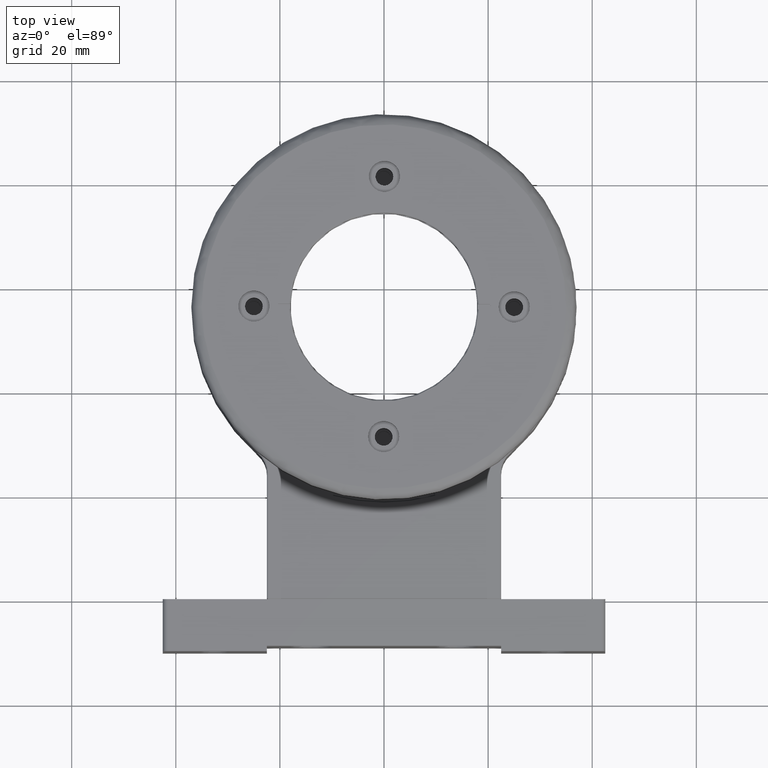
[diagram: clean part render]
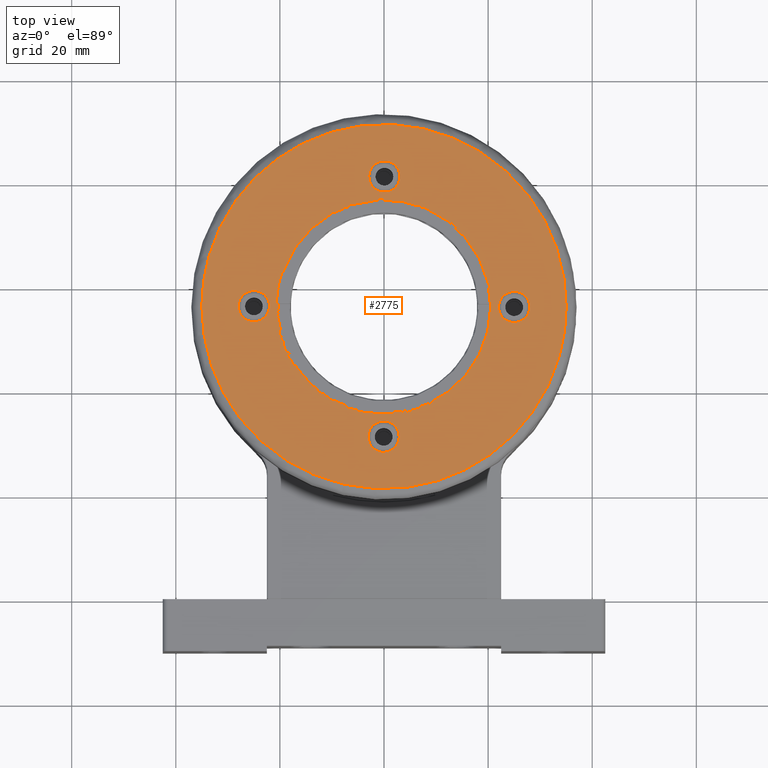
[diagram: same view with one face highlighted and labeled with its STEP entity id]
A machine part, top view. The second image highlights one B-rep face of the part: STEP entity #2775.
In plain terms, the highlighted planar face has unit normal (0, -0, 1).
Its self-contained STEP definition (entity closure, byte-faithful):
#58 = CARTESIAN_POINT ( 'NONE',  ( -6.542174846454915205, 21.61684761043369818, 39.99999999999995737 ) ) ;
#109 = EDGE_CURVE ( 'NONE', #12136, #12136, #9150, .T. ) ;
#190 = CARTESIAN_POINT ( 'NONE',  ( -13.22131955978605866, 23.59310915706839040, 39.99999999999997868 ) ) ;
#253 = CARTESIAN_POINT ( 'NONE',  ( 32.30874447367259705, 42.53950742878792823, 39.99999999999987921 ) ) ;
#282 = CARTESIAN_POINT ( 'NONE',  ( 6.505326938411154281, 90.39014109529070140, 39.99999999999995026 ) ) ;
#286 = VERTEX_POINT ( 'NONE', #3244 ) ;
#313 = CARTESIAN_POINT ( 'NONE',  ( 34.38315238956636222, 49.45782515354488140, 39.99999999999987210 ) ) ;
#327 = CIRCLE ( 'NONE', #5933, 2.999999999999996003 ) ;
#338 = CARTESIAN_POINT ( 'NONE',  ( -5.803856482215495660, 90.51590255441107047, 39.99999999999998579 ) ) ;
#376 = CARTESIAN_POINT ( 'NONE',  ( 34.36982392932547015, 49.38815533516250866, 39.99999999999988631 ) ) ;
#409 = CARTESIAN_POINT ( 'NONE',  ( -15.49648517400365932, 87.42174489368566981, 40.00000000000000711 ) ) ;
#413 = VERTEX_POINT ( 'NONE', #5595 ) ;
#443 = CARTESIAN_POINT ( 'NONE',  ( 28.03240252554591549, 35.02758553070528791, 39.99999999999989342 ) ) ;
#469 = CARTESIAN_POINT ( 'NONE',  ( 13.22131955978539430, 88.40689084293120459, 39.99999999999994316 ) ) ;
#500 = CARTESIAN_POINT ( 'NONE',  ( 25.53072454064341912, 32.02829720465393137, 39.99999999999988631 ) ) ;
#527 = CARTESIAN_POINT ( 'NONE',  ( 19.36660681679766327, 85.15373499218669906, 39.99999999999992895 ) ) ;
#566 = FACE_BOUND ( 'NONE', #10877, .T. ) ;
#591 = CARTESIAN_POINT ( 'NONE',  ( -29.88707231088368488, 74.25274414499034492, 40.00000000000003553 ) ) ;
#632 = FACE_BOUND ( 'NONE', #10486, .T. ) ;
#649 = CARTESIAN_POINT ( 'NONE',  ( -34.34967670223628744, 62.71630418763265880, 40.00000000000003553 ) ) ;
#704 = CARTESIAN_POINT ( 'NONE',  ( -34.99338474008010991, 58.24648396345419599, 40.00000000000003553 ) ) ;
#708 = EDGE_LOOP ( 'NONE', ( #8100 ) ) ;
#771 = CARTESIAN_POINT ( 'NONE',  ( -32.49043762676101466, 69.01432610799909639, 40.00000000000004263 ) ) ;
#884 = CARTESIAN_POINT ( 'NONE',  ( -34.99984086352086621, 56.10554396340680228, 40.00000000000003553 ) ) ;
#942 = CARTESIAN_POINT ( 'NONE',  ( -34.47598216360831458, 49.96554734788636409, 40.00000000000004263 ) ) ;
#1009 = CARTESIAN_POINT ( 'NONE',  ( -6.959726640633069117, 21.69841525138556193, 39.99999999999996447 ) ) ;
#1046 = CARTESIAN_POINT ( 'NONE',  ( 34.99984086352095858, 55.89445603659325457, 39.99999999999988631 ) ) ;
#1070 = CARTESIAN_POINT ( 'NONE',  ( -29.63144602568100083, 37.37160178156627666, 40.00000000000001421 ) ) ;
#1128 = CARTESIAN_POINT ( 'NONE',  ( -19.49215727222988903, 26.93004891466060258, 39.99999999999999289 ) ) ;
#1157 = DIRECTION ( 'NONE',  ( 0.9999954532434547350, -0.003015541811622172736, -2.030895776753335164E-15 ) ) ;
#1203 = CARTESIAN_POINT ( 'NONE',  ( 12.75072068833034855, 23.40520824597612304, 39.99999999999992184 ) ) ;
#1233 = CARTESIAN_POINT ( 'NONE',  ( 32.60715889120948674, 68.71905699232628706, 39.99999999999989342 ) ) ;
#1264 = CARTESIAN_POINT ( 'NONE',  ( 9.033958272793144673, 22.15242131505118905, 39.99999999999991473 ) ) ;
#1291 = CARTESIAN_POINT ( 'NONE',  ( -13.88598756662949718, 88.14932457190698756, 40.00000000000000711 ) ) ;
#1321 = CARTESIAN_POINT ( 'NONE',  ( 30.78298996030571288, 39.27054386853081525, 39.99999999999987921 ) ) ;
#1349 = CARTESIAN_POINT ( 'NONE',  ( 11.92742793723630790, 88.92454512357193153, 39.99999999999995026 ) ) ;
#1418 = CARTESIAN_POINT ( 'NONE',  ( 30.43355396240153254, 73.30399962658458435, 39.99999999999989342 ) ) ;
#1451 = CARTESIAN_POINT ( 'NONE',  ( 6.034434070147219664, 21.52401445596513341, 39.99999999999993605 ) ) ;
#1476 = CARTESIAN_POINT ( 'NONE',  ( 13.93656834835206126, 88.10811729676240134, 39.99999999999994316 ) ) ;
#1534 = CARTESIAN_POINT ( 'NONE',  ( -32.44848916849721121, 69.11857359999774530, 40.00000000000002132 ) ) ;
#1559 = ORIENTED_EDGE ( 'NONE', *, *, #5663, .T. ) ;
#1652 = CARTESIAN_POINT ( 'NONE',  ( -19.00059929646804591, 85.39358511063490198, 40.00000000000000711 ) ) ;
#1691 = FACE_BOUND ( 'NONE', #9148, .T. ) ;
#1773 = CARTESIAN_POINT ( 'NONE',  ( -33.47685140595361730, 66.32334029318401747, 40.00000000000003553 ) ) ;
#1829 = CARTESIAN_POINT ( 'NONE',  ( -31.42174489367296886, 40.50351482597691444, 40.00000000000001421 ) ) ;
#1946 = CARTESIAN_POINT ( 'NONE',  ( -8.411401220756401287, 22.01725617150984604, 39.99999999999996447 ) ) ;
#2013 = CARTESIAN_POINT ( 'NONE',  ( -34.59172831076352139, 50.65757873808058775, 40.00000000000002842 ) ) ;
#2074 = CARTESIAN_POINT ( 'NONE',  ( -32.67128193233013178, 43.44626054034133489, 40.00000000000002132 ) ) ;
#2134 = CARTESIAN_POINT ( 'NONE',  ( 32.40689084293126854, 42.77868044021327165, 39.99999999999988631 ) ) ;
#2207 = CARTESIAN_POINT ( 'NONE',  ( 4.417960699609261077, 21.27256774209317669, 39.99999999999993605 ) ) ;
#2235 = CARTESIAN_POINT ( 'NONE',  ( -12.55373945964619153, 88.67128193233450872, 39.99999999999999289 ) ) ;
#2269 = CARTESIAN_POINT ( 'NONE',  ( 34.39014058010912578, 49.49467032400624333, 39.99999999999988631 ) ) ;
#2270 = EDGE_CURVE ( 'NONE', #10195, #4555, #10026, .T. ) ;
#2295 = CARTESIAN_POINT ( 'NONE',  ( 32.63287008658848265, 68.65294749081573400, 39.99999999999989342 ) ) ;
#2326 = CARTESIAN_POINT ( 'NONE',  ( 26.74364260491284284, 33.36479455313599374, 39.99999999999988631 ) ) ;
#2358 = CARTESIAN_POINT ( 'NONE',  ( -6.133215838619096694, 90.45845010552297083, 39.99999999999999289 ) ) ;
#2362 = VERTEX_POINT ( 'NONE', #9001 ) ;
#2394 = CARTESIAN_POINT ( 'NONE',  ( 6.230002467478857220, 21.55891567341798876, 39.99999999999993605 ) ) ;
#2426 = CARTESIAN_POINT ( 'NONE',  ( 16.72945613145770949, 86.78298996030551393, 39.99999999999994316 ) ) ;
#2468 = FACE_BOUND ( 'NONE', #9093, .T. ) ;
#2485 = CARTESIAN_POINT ( 'NONE',  ( 6.959726640664433361, 90.30158474860337492, 39.99999999999995026 ) ) ;
#2612 = CARTESIAN_POINT ( 'NONE',  ( -24.99988633108631220, 56.07538854529057204, 40.00000000000001421 ) ) ;
#2660 = CARTESIAN_POINT ( 'NONE',  ( -34.36982392932463171, 62.61184466484154143, 40.00000000000002842 ) ) ;
#2716 = CARTESIAN_POINT ( 'NONE',  ( -34.39014058010901920, 62.50532967599378509, 40.00000000000002842 ) ) ;
#2732 = DIRECTION ( 'NONE',  ( -2.191762339234539386E-15, 4.880728349222902423E-16, -1.000000000000000000 ) ) ;
#2769 = CARTESIAN_POINT ( 'NONE',  ( -13.01432610800011958, 23.50956237323918430, 39.99999999999997868 ) ) ;
#2775 = ADVANCED_FACE ( 'NONE', ( #12163, #2468, #1691, #632, #566, #3463 ), #8275, .T. ) ;
#2840 = CARTESIAN_POINT ( 'NONE',  ( -35.00306838916777252, 55.03525173277359528, 40.00000000000003553 ) ) ;
#2896 = CARTESIAN_POINT ( 'NONE',  ( -16.72945613146382726, 25.21701003969084454, 39.99999999999998579 ) ) ;
#2915 = DIRECTION ( 'NONE',  ( -2.191762339234539386E-15, 4.880728349222902423E-16, -1.000000000000000000 ) ) ;
#2952 = CARTESIAN_POINT ( 'NONE',  ( -33.84757868495275801, 46.96604172723056081, 40.00000000000001421 ) ) ;
#3020 = CARTESIAN_POINT ( 'NONE',  ( -34.23160659622246982, 48.61851321509175250, 40.00000000000004263 ) ) ;
#3084 = CARTESIAN_POINT ( 'NONE',  ( 29.88707231090591421, 37.74725585504713621, 39.99999999999989342 ) ) ;
#3144 = CARTESIAN_POINT ( 'NONE',  ( 21.08999981972417714, 27.96339892373056912, 39.99999999999988631 ) ) ;
#3171 = CARTESIAN_POINT ( 'NONE',  ( -11.85713807587249491, 88.93257243358409880, 40.00000000000000000 ) ) ;
#3211 = CARTESIAN_POINT ( 'NONE',  ( 22.96053280713556433, 29.47363858884049392, 39.99999999999989342 ) ) ;
#3240 = CARTESIAN_POINT ( 'NONE',  ( -2.563618975986353021, 90.93487890580229305, 39.99999999999997868 ) ) ;
#3244 = CARTESIAN_POINT ( 'NONE',  ( 2.924597814439868326, 30.99106704347879315, 39.99999999999993605 ) ) ;
#3300 = CARTESIAN_POINT ( 'NONE',  ( 13.01432610799782630, 88.49043762676174651, 39.99999999999993605 ) ) ;
#3328 = CARTESIAN_POINT ( 'NONE',  ( 10.92261578922966159, 22.73928668200521130, 39.99999999999991473 ) ) ;
#3361 = CARTESIAN_POINT ( 'NONE',  ( 31.42174489363064893, 71.49648517410402349, 39.99999999999989342 ) ) ;
#3425 = CARTESIAN_POINT ( 'NONE',  ( 19.30233473393600008, 85.19632267863711661, 39.99999999999992895 ) ) ;
#3463 = FACE_OUTER_BOUND ( 'NONE', #5612, .T. ) ;
#3533 = CARTESIAN_POINT ( 'NONE',  ( -34.20107381302227623, 63.44530581268689673, 40.00000000000003553 ) ) ;
#3574 = EDGE_CURVE ( 'NONE', #286, #286, #327, .T. ) ;
#3626 = CARTESIAN_POINT ( 'NONE',  ( 34.23160659622759283, 63.38148678491044308, 39.99999999999987210 ) ) ;
#3694 = DIRECTION ( 'NONE',  ( 0.9999954532434546239, -0.003015541811623079563, -2.312964634635745817E-15 ) ) ;
#3716 = CARTESIAN_POINT ( 'NONE',  ( -32.92454512359244490, 67.92742793719537531, 40.00000000000004263 ) ) ;
#3748 = CARTESIAN_POINT ( 'NONE',  ( 34.51589601165291299, 61.80389244730496046, 39.99999999999988631 ) ) ;
#3768 = CARTESIAN_POINT ( 'NONE',  ( -10.32334029312213453, 22.52314859403500336, 39.99999999999997868 ) ) ;
#3795 = CARTESIAN_POINT ( 'NONE',  ( 24.99988633108641878, 55.92461145470947770, 39.99999999999990052 ) ) ;
#3825 = DIRECTION ( 'NONE',  ( -2.191762339234539386E-15, 4.880728349222902423E-16, -1.000000000000000000 ) ) ;
#3834 = ORIENTED_EDGE ( 'NONE', *, *, #7884, .T. ) ;
#3835 = CARTESIAN_POINT ( 'NONE',  ( -19.68002070505681544, 27.05628866400957477, 39.99999999999998579 ) ) ;
#3883 = B_SPLINE_CURVE_WITH_KNOTS ( 'NONE', 3,
 ( #8504, #4920, #6919, #12335, #10736, #3748, #7571, #5990, #8382, #12215, #3626, #7448, #11259, #6502, #10324, #4113, #2295, #1233, #6053, #5116, #3361, #1418, #10869, #7175, #5057, #7107, #4174, #6112, #4301, #6175, #5176, #9114, #10996, #11816, #5244, #527, #3425, #11936, #2426, #9994, #1476, #6241, #469, #9932, #8873, #3300, #1349, #10931, #9058, #7992, #2485, #8112, #10060, #11879, #282, #4360, #11748, #5303, #3240, #8929, #8175, #338, #7928, #2358, #12008, #7239, #11056, #9869, #6297, #3171, #8994, #2235, #6982, #7048, #10807, #1291, #409, #4241, #8056, #8292, #9239, #7297, #1652, #7481, #11109, #8419, #5537, #9290, #6356, #11293, #10241, #8478, #8352, #591, #9353, #7354, #10117, #10178, #12307, #1534, #4540, #771, #3716, #1773, #12122, #3533, #4430, #649, #2660, #4483, #2716, #5363, #704, #11169 ),
 .UNSPECIFIED., .F., .F.,
 ( 4, 1, 1, 1, 1, 1, 2, 2, 1, 1, 1, 1, 1, 2, 2, 1, 1, 1, 1, 2, 2, 2, 1, 1, 1, 1, 2, 2, 1, 1, 1, 1, 1, 2, 2, 1, 1, 1, 1, 1, 2, 2, 2, 1, 1, 1, 1, 1, 2, 2, 1, 1, 1, 1, 1, 2, 2, 1, 1, 1, 1, 2, 2, 2, 1, 1, 1, 1, 2, 2, 1, 1, 1, 1, 1, 2, 2, 1, 1, 1, 1, 1, 2, 2, 4 ),
 ( 0.000000000000000000, 0.03125000000000903444, 0.04687500000001345452, 0.05468750000001555006, 0.05859375000001658396, 0.06054687500001711825, 0.06152343750001727785, 0.06250000000001744438, 0.09375000000002380041, 0.1093750000000269784, 0.1171875000000287825, 0.1210937500000299066, 0.1230468750000304201, 0.1240234375000306838, 0.1250000000000309197, 0.1562500000000317246, 0.1718750000000321410, 0.1796875000000325018, 0.1835937500000325018, 0.1855468750000325295, 0.1875000000000325295, 0.2500000000000299760, 0.2812500000000288658, 0.2968750000000281997, 0.3046875000000278111, 0.3085937500000275890, 0.3105468750000274225, 0.3125000000000272560, 0.3437500000000242029, 0.3593750000000226485, 0.3671875000000219269, 0.3710937500000215383, 0.3730468750000212608, 0.3740234375000211497, 0.3750000000000210387, 0.4062500000000209277, 0.4218750000000209277, 0.4296875000000209277, 0.4335937500000209277, 0.4355468750000209277, 0.4365234375000208722, 0.4375000000000208167, 0.5000000000000178746, 0.5312500000000163203, 0.5468750000000156541, 0.5546875000000152101, 0.5585937500000150990, 0.5605468750000149880, 0.5615234375000148770, 0.5625000000000148770, 0.5937500000000129896, 0.6093750000000121014, 0.6171875000000116573, 0.6210937500000114353, 0.6230468750000113243, 0.6240234375000113243, 0.6250000000000112133, 0.6562500000000093259, 0.6718750000000084377, 0.6796875000000078826, 0.6835937500000075495, 0.6855468750000073275, 0.6875000000000071054, 0.7500000000000024425, 0.7812500000000001110, 0.7968749999999990008, 0.8046874999999985567, 0.8085937499999984457, 0.8105468749999981126, 0.8124999999999977796, 0.8437499999999937828, 0.8593749999999918954, 0.8671874999999908962, 0.8710937499999904521, 0.8730468749999901190, 0.8740234374999900080, 0.8749999999999897859, 0.9062499999999917843, 0.9218749999999930056, 0.9296874999999933387, 0.9335937499999935607, 0.9355468749999936717, 0.9365234374999937828, 0.9374999999999937828, 1.000000000000000000 ),
 .UNSPECIFIED. ) ;
#3893 = CARTESIAN_POINT ( 'NONE',  ( -34.51589601165283483, 50.19610755268375613, 40.00000000000003553 ) ) ;
#3953 = CARTESIAN_POINT ( 'NONE',  ( -28.03660107628403964, 34.91000018029846075, 40.00000000000000711 ) ) ;
#4025 = CARTESIAN_POINT ( 'NONE',  ( -29.90462150348628256, 37.81009300292045339, 40.00000000000001421 ) ) ;
#4086 = CARTESIAN_POINT ( 'NONE',  ( 6.199062084762354985, 21.55333533089448395, 39.99999999999992895 ) ) ;
#4113 = CARTESIAN_POINT ( 'NONE',  ( 32.67128193233130418, 68.55373945965915539, 39.99999999999990763 ) ) ;
#4146 = CARTESIAN_POINT ( 'NONE',  ( 6.133215838620476923, 21.54154989447624757, 39.99999999999993605 ) ) ;
#4174 = CARTESIAN_POINT ( 'NONE',  ( 29.39358511063647228, 75.00059929646634771, 39.99999999999989342 ) ) ;
#4214 = CARTESIAN_POINT ( 'NONE',  ( 34.99984086352095858, 55.89445603659325457, 39.99999999999988631 ) ) ;
#4241 = CARTESIAN_POINT ( 'NONE',  ( -17.30399962650928458, 86.43355396244277244, 40.00000000000000711 ) ) ;
#4274 = CARTESIAN_POINT ( 'NONE',  ( 28.64520469727548857, 35.88486703724166205, 39.99999999999988631 ) ) ;
#4275 = CARTESIAN_POINT ( 'NONE',  ( -34.99984086352086621, 56.10554396340680228, 40.00000000000003553 ) ) ;
#4301 = CARTESIAN_POINT ( 'NONE',  ( 26.52636141118571800, 78.96053280710926003, 39.99999999999990763 ) ) ;
#4360 = CARTESIAN_POINT ( 'NONE',  ( 4.368964455372240430, 90.79218025164516348, 39.99999999999995737 ) ) ;
#4430 = CARTESIAN_POINT ( 'NONE',  ( -34.30158474861174511, 62.95972664064763791, 40.00000000000002842 ) ) ;
#4483 = CARTESIAN_POINT ( 'NONE',  ( -34.38315238956585773, 62.54217484645718628, 40.00000000000003553 ) ) ;
#4540 = CARTESIAN_POINT ( 'NONE',  ( -32.47611818463031597, 69.05002223999726141, 40.00000000000004263 ) ) ;
#4555 = VERTEX_POINT ( 'NONE', #1046 ) ;
#4664 = DIRECTION ( 'NONE',  ( -2.191762339234539386E-15, 4.880728349222902423E-16, -1.000000000000000000 ) ) ;
#4712 = CARTESIAN_POINT ( 'NONE',  ( -32.75982494111590881, 43.67805239860855693, 40.00000000000002132 ) ) ;
#4844 = CIRCLE ( 'NONE', #7040, 2.999999999999996003 ) ;
#4895 = CARTESIAN_POINT ( 'NONE',  ( -30.43355396243327249, 38.69600037347613153, 40.00000000000002132 ) ) ;
#4920 = CARTESIAN_POINT ( 'NONE',  ( 35.00306838916778673, 56.96474826719884987, 39.99999999999988631 ) ) ;
#4962 = CARTESIAN_POINT ( 'NONE',  ( -34.45844815048441490, 49.86677341466626245, 40.00000000000002842 ) ) ;
#5032 = CARTESIAN_POINT ( 'NONE',  ( 18.93979999829061711, 26.56720448755326558, 39.99999999999990763 ) ) ;
#5057 = CARTESIAN_POINT ( 'NONE',  ( 29.51250455340190726, 74.81536678532729923, 39.99999999999988631 ) ) ;
#5089 = CARTESIAN_POINT ( 'NONE',  ( 34.30158474861437412, 49.04027335936577003, 39.99999999999988631 ) ) ;
#5116 = CARTESIAN_POINT ( 'NONE',  ( 32.14932457187553183, 69.88598756668689305, 39.99999999999989342 ) ) ;
#5148 = CARTESIAN_POINT ( 'NONE',  ( 34.79221322326682753, 51.63121074991892812, 39.99999999999988631 ) ) ;
#5176 = CARTESIAN_POINT ( 'NONE',  ( 22.63520544684118363, 82.74364260493582890, 39.99999999999991473 ) ) ;
#5216 = CARTESIAN_POINT ( 'NONE',  ( 12.32194760139704925, 23.24017505888498647, 39.99999999999990052 ) ) ;
#5244 = CARTESIAN_POINT ( 'NONE',  ( 19.49215727222414429, 85.06995108534435701, 39.99999999999991473 ) ) ;
#5275 = CARTESIAN_POINT ( 'NONE',  ( 19.00059929646745260, 26.60641488936466814, 39.99999999999990763 ) ) ;
#5303 = CARTESIAN_POINT ( 'NONE',  ( -0.9646605808856675290, 91.00308434103526167, 39.99999999999998579 ) ) ;
#5363 = CARTESIAN_POINT ( 'NONE',  ( -34.79221322326672805, 60.36878925008104346, 40.00000000000002842 ) ) ;
#5376 = DIRECTION ( 'NONE',  ( 0.9999954532434548460, -0.003015541811620767610, -2.312964634635746605E-15 ) ) ;
#5463 = DIRECTION ( 'NONE',  ( 2.191762339234539386E-15, -4.880728349222902423E-16, 1.000000000000000000 ) ) ;
#5537 = CARTESIAN_POINT ( 'NONE',  ( -26.74364260488679435, 78.63520544689662017, 40.00000000000004263 ) ) ;
#5595 = CARTESIAN_POINT ( 'NONE',  ( 20.49990679149087569, 55.93818139286176461, 39.99999999999991473 ) ) ;
#5612 = EDGE_LOOP ( 'NONE', ( #7330, #6493 ) ) ;
#5655 = CARTESIAN_POINT ( 'NONE',  ( -34.44108432658190821, 49.76999753252079728, 40.00000000000004263 ) ) ;
#5663 = EDGE_CURVE ( 'NONE', #2362, #2362, #7737, .T. ) ;
#5712 = CARTESIAN_POINT ( 'NONE',  ( -23.97170279535725967, 30.46927545936402382, 40.00000000000000711 ) ) ;
#5751 = AXIS2_PLACEMENT_3D ( 'NONE', #2612, #2732, #5376 ) ;
#5770 = CARTESIAN_POINT ( 'NONE',  ( -22.63520544688360658, 29.25635739510013877, 39.99999999999998579 ) ) ;
#5817 = EDGE_CURVE ( 'NONE', #413, #413, #9533, .T. ) ;
#5840 = CARTESIAN_POINT ( 'NONE',  ( -29.51250455340764844, 37.18463321468384208, 40.00000000000002132 ) ) ;
#5918 = CARTESIAN_POINT ( 'NONE',  ( 5.351378694325055535E-14, 56.00000000000002132, 39.99999999999995737 ) ) ;
#5933 = AXIS2_PLACEMENT_3D ( 'NONE', #8289, #4664, #7477 ) ;
#5961 = CARTESIAN_POINT ( 'NONE',  ( 2.563618976004601535, 21.06512109418545364, 39.99999999999993605 ) ) ;
#5990 = CARTESIAN_POINT ( 'NONE',  ( 34.45844815048451437, 62.13322658533039089, 39.99999999999987921 ) ) ;
#6028 = CARTESIAN_POINT ( 'NONE',  ( 33.98274382848978092, 47.58859877923993054, 39.99999999999987921 ) ) ;
#6053 = CARTESIAN_POINT ( 'NONE',  ( 32.59479175402447737, 68.75072068832923833, 39.99999999999990052 ) ) ;
#6084 = CARTESIAN_POINT ( 'NONE',  ( 15.49648517404455639, 24.57825510634090449, 39.99999999999992184 ) ) ;
#6112 = CARTESIAN_POINT ( 'NONE',  ( 28.03660107623556996, 77.08999981975829030, 39.99999999999992184 ) ) ;
#6175 = CARTESIAN_POINT ( 'NONE',  ( 23.97170279533307280, 81.53072454065659258, 39.99999999999993605 ) ) ;
#6206 = AXIS2_PLACEMENT_3D ( 'NONE', #9097, #5463, #7281 ) ;
#6213 = CARTESIAN_POINT ( 'NONE',  ( 7.381486784921821531, 21.76839340377978260, 39.99999999999992184 ) ) ;
#6241 = CARTESIAN_POINT ( 'NONE',  ( 13.46049257120940545, 88.30874447367253310, 39.99999999999994316 ) ) ;
#6297 = CARTESIAN_POINT ( 'NONE',  ( -10.92261578913473663, 89.26071331802451425, 40.00000000000001421 ) ) ;
#6356 = CARTESIAN_POINT ( 'NONE',  ( -28.64520469726402752, 76.11513296277264828, 40.00000000000002132 ) ) ;
#6493 = ORIENTED_EDGE ( 'NONE', *, *, #2270, .T. ) ;
#6502 = CARTESIAN_POINT ( 'NONE',  ( 32.93257243357241748, 67.85713807591920954, 39.99999999999989342 ) ) ;
#6586 = CARTESIAN_POINT ( 'NONE',  ( -26.52636141113703161, 33.03946719284972033, 40.00000000000000711 ) ) ;
#6651 = CARTESIAN_POINT ( 'NONE',  ( -32.93257243356848818, 44.14286192408250997, 40.00000000000002842 ) ) ;
#6706 = CARTESIAN_POINT ( 'NONE',  ( -13.93656834835468850, 23.89188270323602836, 39.99999999999997158 ) ) ;
#6766 = CARTESIAN_POINT ( 'NONE',  ( -19.36660681680054097, 26.84626500781585534, 39.99999999999998579 ) ) ;
#6834 = CARTESIAN_POINT ( 'NONE',  ( -32.63287008658777211, 43.34705250918459285, 40.00000000000002842 ) ) ;
#6896 = CARTESIAN_POINT ( 'NONE',  ( 31.68952518937148000, 41.12036108017552039, 39.99999999999988631 ) ) ;
#6919 = CARTESIAN_POINT ( 'NONE',  ( 34.93485099003417815, 58.56377242703438668, 39.99999999999989342 ) ) ;
#6956 = CARTESIAN_POINT ( 'NONE',  ( 29.15373499218511455, 36.63339318320082327, 39.99999999999990052 ) ) ;
#6982 = CARTESIAN_POINT ( 'NONE',  ( -12.65294749080817560, 88.63287008659035848, 40.00000000000000000 ) ) ;
#7021 = CARTESIAN_POINT ( 'NONE',  ( 29.19632267863714858, 36.69766526606450441, 39.99999999999989342 ) ) ;
#7040 = AXIS2_PLACEMENT_3D ( 'NONE', #7767, #3825, #3694 ) ;
#7048 = CARTESIAN_POINT ( 'NONE',  ( -12.71905699232242171, 88.60715889121040334, 39.99999999999999289 ) ) ;
#7107 = CARTESIAN_POINT ( 'NONE',  ( 29.43279551244480530, 74.93979999829477379, 39.99999999999990052 ) ) ;
#7140 = CARTESIAN_POINT ( 'NONE',  ( 11.85713807592793323, 23.06742756643324910, 39.99999999999990763 ) ) ;
#7175 = CARTESIAN_POINT ( 'NONE',  ( 29.63144602567114205, 74.62839821845273036, 39.99999999999989342 ) ) ;
#7239 = CARTESIAN_POINT ( 'NONE',  ( -6.230002467481003947, 90.44108432658136110, 39.99999999999998579 ) ) ;
#7281 = DIRECTION ( 'NONE',  ( 0.9999954532434546239, -0.003015541811622030489, -2.193224177865602524E-15 ) ) ;
#7297 = CARTESIAN_POINT ( 'NONE',  ( -18.93979999828763638, 85.43279551244862091, 40.00000000000001421 ) ) ;
#7330 = ORIENTED_EDGE ( 'NONE', *, *, #11801, .T. ) ;
#7354 = CARTESIAN_POINT ( 'NONE',  ( -31.68952518934230866, 70.87963891987374154, 40.00000000000004974 ) ) ;
#7369 = VERTEX_POINT ( 'NONE', #9306 ) ;
#7448 = CARTESIAN_POINT ( 'NONE',  ( 33.84757868496168953, 65.03395827277324770, 39.99999999999988631 ) ) ;
#7477 = DIRECTION ( 'NONE',  ( 0.9999954532434546239, -0.003015541811621922936, -2.312964634635745817E-15 ) ) ;
#7481 = CARTESIAN_POINT ( 'NONE',  ( -21.08999981970150017, 84.03660107628411424, 40.00000000000001421 ) ) ;
#7571 = CARTESIAN_POINT ( 'NONE',  ( 34.47598216360842827, 62.03445265210783788, 39.99999999999988631 ) ) ;
#7593 = CARTESIAN_POINT ( 'NONE',  ( -29.43279551244769010, 37.06020000171097450, 40.00000000000000711 ) ) ;
#7656 = CARTESIAN_POINT ( 'NONE',  ( -18.25274414494977293, 26.11292768909215667, 39.99999999999999289 ) ) ;
#7713 = CARTESIAN_POINT ( 'NONE',  ( -6.505326938411899462, 21.60985890470914228, 39.99999999999996447 ) ) ;
#7737 = CIRCLE ( 'NONE', #8734, 2.999999999999995115 ) ;
#7767 = CARTESIAN_POINT ( 'NONE',  ( 0.07538854529060777521, 80.99988633108638680, 39.99999999999997158 ) ) ;
#7777 = CARTESIAN_POINT ( 'NONE',  ( -20.97241446930941322, 27.96759747446384736, 40.00000000000000711 ) ) ;
#7847 = CARTESIAN_POINT ( 'NONE',  ( 29.06995108534124128, 36.50784272777278971, 39.99999999999989342 ) ) ;
#7884 = EDGE_CURVE ( 'NONE', #7369, #7369, #4844, .T. ) ;
#7905 = CARTESIAN_POINT ( 'NONE',  ( 32.49043762676090097, 42.98567389199993727, 39.99999999999988631 ) ) ;
#7928 = CARTESIAN_POINT ( 'NONE',  ( -6.034434070144910400, 90.47598554403343485, 39.99999999999998579 ) ) ;
#7964 = CARTESIAN_POINT ( 'NONE',  ( 5.342354127072791670, 21.40825947608255930, 39.99999999999992895 ) ) ;
#7992 = CARTESIAN_POINT ( 'NONE',  ( 7.445305812718274296, 90.20107381300657323, 39.99999999999996447 ) ) ;
#8030 = CARTESIAN_POINT ( 'NONE',  ( 13.88598756665291667, 23.85067542810822872, 39.99999999999990763 ) ) ;
#8056 = CARTESIAN_POINT ( 'NONE',  ( -18.18990699707103076, 85.90462150349183901, 40.00000000000000000 ) ) ;
#8087 = CARTESIAN_POINT ( 'NONE',  ( 0.9646605808961420392, 20.99691565895773948, 39.99999999999994316 ) ) ;
#8100 = ORIENTED_EDGE ( 'NONE', *, *, #3574, .T. ) ;
#8112 = CARTESIAN_POINT ( 'NONE',  ( 6.716304187641352286, 90.34967670223201708, 39.99999999999996447 ) ) ;
#8175 = CARTESIAN_POINT ( 'NONE',  ( -5.342354127064751879, 90.59174052391207965, 39.99999999999998579 ) ) ;
#8275 = PLANE ( 'NONE',  #6206 ) ;
#8289 = CARTESIAN_POINT ( 'NONE',  ( -0.07538854529049220099, 31.00011366891365938, 39.99999999999994316 ) ) ;
#8292 = CARTESIAN_POINT ( 'NONE',  ( -18.62839821842914745, 85.63144602568404196, 40.00000000000002132 ) ) ;
#8308 = CARTESIAN_POINT ( 'NONE',  ( -21.99989997135595488, 56.06634191985570936, 40.00000000000000711 ) ) ;
#8352 = CARTESIAN_POINT ( 'NONE',  ( -29.19632267863842046, 75.30233473393320764, 40.00000000000002842 ) ) ;
#8382 = CARTESIAN_POINT ( 'NONE',  ( 34.44666367990244993, 62.19906752234069103, 39.99999999999989342 ) ) ;
#8419 = CARTESIAN_POINT ( 'NONE',  ( -25.53072454062848706, 79.97170279536472037, 40.00000000000002842 ) ) ;
#8478 = CARTESIAN_POINT ( 'NONE',  ( -29.15373499218318898, 75.36660681680154994, 40.00000000000004263 ) ) ;
#8504 = CARTESIAN_POINT ( 'NONE',  ( 34.99984086352095858, 55.89445603659325457, 39.99999999999988631 ) ) ;
#8521 = CARTESIAN_POINT ( 'NONE',  ( -14.87963891982047748, 24.31047481062597981, 39.99999999999999289 ) ) ;
#8587 = CARTESIAN_POINT ( 'NONE',  ( -32.60715889120906752, 43.28094300767388347, 40.00000000000002132 ) ) ;
#8650 = CARTESIAN_POINT ( 'NONE',  ( -6.716304187625095068, 21.65032329776229147, 39.99999999999995026 ) ) ;
#8734 = AXIS2_PLACEMENT_3D ( 'NONE', #3795, #2915, #11556 ) ;
#8778 = CARTESIAN_POINT ( 'NONE',  ( -34.44666367990234335, 49.80093247765766762, 40.00000000000003553 ) ) ;
#8847 = CARTESIAN_POINT ( 'NONE',  ( 32.47611818463177258, 42.94997776000510470, 39.99999999999987921 ) ) ;
#8873 = CARTESIAN_POINT ( 'NONE',  ( 13.05002223999454358, 88.47611818463172995, 39.99999999999995026 ) ) ;
#8905 = CARTESIAN_POINT ( 'NONE',  ( 28.94371133599353030, 36.31997929494774979, 39.99999999999989342 ) ) ;
#8929 = CARTESIAN_POINT ( 'NONE',  ( -4.417960699595542273, 90.72743225789766086, 39.99999999999997868 ) ) ;
#8967 = CARTESIAN_POINT ( 'NONE',  ( 34.99338474008023780, 53.75351603654588928, 39.99999999999988631 ) ) ;
#8994 = CARTESIAN_POINT ( 'NONE',  ( -12.32194760136730949, 88.75982494112432164, 40.00000000000000000 ) ) ;
#9001 = CARTESIAN_POINT ( 'NONE',  ( 27.99987269081677610, 55.91556482927461502, 39.99999999999989342 ) ) ;
#9033 = CARTESIAN_POINT ( 'NONE',  ( 5.803856482219860169, 21.48409744558611223, 39.99999999999992895 ) ) ;
#9058 = CARTESIAN_POINT ( 'NONE',  ( 8.411401220856571825, 89.98274382845465880, 39.99999999999995026 ) ) ;
#9090 = CARTESIAN_POINT ( 'NONE',  ( 18.62839821843880728, 26.36855397432221793, 39.99999999999988631 ) ) ;
#9093 = EDGE_LOOP ( 'NONE', ( #1559 ) ) ;
#9097 = CARTESIAN_POINT ( 'NONE',  ( 5.351378694325055535E-14, 56.00000000000002132, 39.99999999999995737 ) ) ;
#9114 = CARTESIAN_POINT ( 'NONE',  ( 20.97241446927762354, 84.03240252556317103, 39.99999999999992184 ) ) ;
#9148 = EDGE_LOOP ( 'NONE', ( #11470 ) ) ;
#9150 = CIRCLE ( 'NONE', #5751, 2.999999999999995115 ) ;
#9239 = CARTESIAN_POINT ( 'NONE',  ( -18.81536678531346851, 85.51250455340942835, 40.00000000000000000 ) ) ;
#9290 = CARTESIAN_POINT ( 'NONE',  ( -28.03240252552636491, 76.97241446931919029, 40.00000000000002132 ) ) ;
#9306 = CARTESIAN_POINT ( 'NONE',  ( 3.075374905020967997, 80.99083970565152413, 39.99999999999996447 ) ) ;
#9353 = CARTESIAN_POINT ( 'NONE',  ( -30.78298996026687462, 72.72945613153478917, 40.00000000000003553 ) ) ;
#9468 = CARTESIAN_POINT ( 'NONE',  ( -32.59479175402360340, 43.24927931166936190, 40.00000000000002842 ) ) ;
#9533 = CIRCLE ( 'NONE', #11947, 20.50000000000000000 ) ;
#9588 = CARTESIAN_POINT ( 'NONE',  ( -7.445305812659806399, 21.79892618697274287, 39.99999999999995026 ) ) ;
#9650 = CARTESIAN_POINT ( 'NONE',  ( -29.39358511063485579, 36.99940070353192567, 40.00000000000001421 ) ) ;
#9707 = CARTESIAN_POINT ( 'NONE',  ( -34.93485099003420657, 53.43622757291733905, 40.00000000000003553 ) ) ;
#9731 = DIRECTION ( 'NONE',  ( -2.191762339234539386E-15, 4.880728349222902423E-16, -1.000000000000000000 ) ) ;
#9775 = CARTESIAN_POINT ( 'NONE',  ( 32.44848916850004628, 42.88142640000686612, 39.99999999999988631 ) ) ;
#9845 = CARTESIAN_POINT ( 'NONE',  ( 34.20107381302706528, 48.55469418733804332, 39.99999999999987210 ) ) ;
#9869 = CARTESIAN_POINT ( 'NONE',  ( -9.033958272666605893, 89.84757868498840594, 40.00000000000000000 ) ) ;
#9903 = CARTESIAN_POINT ( 'NONE',  ( 18.81536678531917062, 26.48749544659424515, 39.99999999999989342 ) ) ;
#9932 = CARTESIAN_POINT ( 'NONE',  ( 13.11857359999238959, 88.44848916850000364, 39.99999999999994316 ) ) ;
#9994 = CARTESIAN_POINT ( 'NONE',  ( 14.87963891981589626, 87.68952518937130947, 39.99999999999993605 ) ) ;
#10026 = B_SPLINE_CURVE_WITH_KNOTS ( 'NONE', 3,
 ( #884, #2840, #9707, #11412, #2013, #3893, #942, #4962, #8778, #5655, #3020, #2952, #10649, #6651, #4712, #2074, #6834, #8587, #9468, #10469, #1829, #4895, #4025, #1070, #5840, #7593, #9650, #3953, #6586, #5712, #5770, #7777, #12422, #3835, #1128, #6766, #11598, #7656, #2896, #8521, #6706, #12354, #190, #11343, #10522, #2769, #10412, #3768, #1946, #9588, #1009, #8650, #11528, #58, #7713, #10588, #10967, #8087, #5961, #2207, #7964, #9033, #1451, #4146, #4086, #2394, #6213, #1264, #3328, #7140, #5216, #11786, #10031, #10844, #1203, #8030, #6084, #11909, #11660, #9090, #9903, #5032, #5275, #3144, #3211, #500, #2326, #443, #4274, #8905, #7847, #6956, #7021, #3084, #1321, #6896, #10709, #253, #2134, #9775, #8847, #7905, #11722, #10775, #6028, #9845, #5089, #10902, #376, #313, #2269, #5148, #8967, #4214 ),
 .UNSPECIFIED., .F., .F.,
 ( 4, 1, 1, 1, 1, 1, 2, 2, 1, 1, 1, 1, 1, 2, 2, 1, 1, 1, 1, 2, 2, 2, 1, 1, 1, 1, 2, 2, 1, 1, 1, 1, 1, 2, 2, 1, 1, 1, 1, 1, 2, 2, 2, 1, 1, 1, 1, 1, 2, 2, 1, 1, 1, 1, 1, 2, 2, 1, 1, 1, 1, 2, 2, 2, 1, 1, 1, 1, 2, 2, 1, 1, 1, 1, 1, 2, 2, 1, 1, 1, 1, 1, 2, 2, 4 ),
 ( 0.000000000000000000, 0.03125000000000380251, 0.04687500000000581479, 0.05468750000000683481, 0.05859375000000733441, 0.06054687500000768136, 0.06152343750000785483, 0.06250000000000802136, 0.09375000000000927036, 0.1093750000000098949, 0.1171875000000102279, 0.1210937500000104361, 0.1230468750000106304, 0.1240234375000107137, 0.1250000000000107969, 0.1562500000000126010, 0.1718750000000134892, 0.1796875000000139055, 0.1835937500000140721, 0.1855468750000141553, 0.1875000000000142664, 0.2500000000000139888, 0.2812500000000138778, 0.2968750000000138778, 0.3046875000000138223, 0.3085937500000138223, 0.3105468750000138778, 0.3125000000000138778, 0.3437500000000144329, 0.3593750000000147660, 0.3671875000000149325, 0.3710937500000149880, 0.3730468750000150435, 0.3740234375000150435, 0.3750000000000150435, 0.4062500000000154876, 0.4218750000000157652, 0.4296875000000159317, 0.4335937500000159872, 0.4355468750000160427, 0.4365234375000160427, 0.4375000000000160427, 0.5000000000000164313, 0.5312500000000166533, 0.5468750000000167644, 0.5546875000000168754, 0.5585937500000168754, 0.5605468750000168754, 0.5615234375000168754, 0.5625000000000168754, 0.5937500000000168754, 0.6093750000000168754, 0.6171875000000167644, 0.6210937500000168754, 0.6230468750000168754, 0.6240234375000168754, 0.6250000000000168754, 0.6562500000000159872, 0.6718750000000155431, 0.6796875000000154321, 0.6835937500000153211, 0.6855468750000152101, 0.6875000000000150990, 0.7500000000000125455, 0.7812500000000112133, 0.7968750000000104361, 0.8046875000000101030, 0.8085937500000098810, 0.8105468750000097700, 0.8125000000000096589, 0.8437500000000108802, 0.8593750000000114353, 0.8671875000000116573, 0.8710937500000118794, 0.8730468750000119904, 0.8740234375000119904, 0.8750000000000119904, 0.9062500000000086597, 0.9218750000000069944, 0.9296875000000061062, 0.9335937500000056621, 0.9355468750000054401, 0.9365234375000053291, 0.9375000000000052180, 1.000000000000000000 ),
 .UNSPECIFIED. ) ;
#10031 = CARTESIAN_POINT ( 'NONE',  ( 12.65294749081714443, 23.36712991341248369, 39.99999999999992184 ) ) ;
#10060 = CARTESIAN_POINT ( 'NONE',  ( 6.611844664846557862, 90.36982392932218033, 39.99999999999996447 ) ) ;
#10117 = CARTESIAN_POINT ( 'NONE',  ( -32.10811729674547621, 69.93656834838577652, 40.00000000000003553 ) ) ;
#10178 = CARTESIAN_POINT ( 'NONE',  ( -32.30874447366341684, 69.46049257122744791, 40.00000000000003553 ) ) ;
#10195 = VERTEX_POINT ( 'NONE', #4275 ) ;
#10241 = CARTESIAN_POINT ( 'NONE',  ( -29.06995108533757133, 75.49215727223173644, 40.00000000000002842 ) ) ;
#10324 = CARTESIAN_POINT ( 'NONE',  ( 32.75982494111806886, 68.32194760139236678, 39.99999999999989342 ) ) ;
#10412 = CARTESIAN_POINT ( 'NONE',  ( -11.92742793715996896, 23.07545487640104653, 39.99999999999996447 ) ) ;
#10469 = CARTESIAN_POINT ( 'NONE',  ( -32.14932457189968318, 42.11401243335942013, 40.00000000000002842 ) ) ;
#10486 = EDGE_LOOP ( 'NONE', ( #3834 ) ) ;
#10522 = CARTESIAN_POINT ( 'NONE',  ( -13.05002223999467148, 23.52388181536817058, 39.99999999999997868 ) ) ;
#10588 = CARTESIAN_POINT ( 'NONE',  ( -4.368964455318246287, 21.20781974836873829, 39.99999999999995737 ) ) ;
#10649 = CARTESIAN_POINT ( 'NONE',  ( -33.26071331799774811, 45.07738421078814639, 40.00000000000000711 ) ) ;
#10709 = CARTESIAN_POINT ( 'NONE',  ( 32.10811729676254345, 42.06343165164294362, 39.99999999999988631 ) ) ;
#10736 = CARTESIAN_POINT ( 'NONE',  ( 34.59172831076356402, 61.34242126189828781, 39.99999999999987921 ) ) ;
#10775 = CARTESIAN_POINT ( 'NONE',  ( 33.47685140596446729, 45.67665970687301069, 39.99999999999988631 ) ) ;
#10807 = CARTESIAN_POINT ( 'NONE',  ( -12.75072068833095607, 88.59479175402346129, 39.99999999999999289 ) ) ;
#10844 = CARTESIAN_POINT ( 'NONE',  ( 12.71905699232702425, 23.39284110879104261, 39.99999999999990763 ) ) ;
#10869 = CARTESIAN_POINT ( 'NONE',  ( 29.90462150346780135, 74.18990699711497427, 39.99999999999989342 ) ) ;
#10877 = EDGE_LOOP ( 'NONE', ( #11838 ) ) ;
#10902 = CARTESIAN_POINT ( 'NONE',  ( 34.34967670223769431, 49.28369581237431163, 39.99999999999988631 ) ) ;
#10931 = CARTESIAN_POINT ( 'NONE',  ( 10.32334029325565439, 89.47685140591767095, 39.99999999999994316 ) ) ;
#10967 = CARTESIAN_POINT ( 'NONE',  ( -2.245953052012456652, 21.00664609152184781, 39.99999999999995026 ) ) ;
#10996 = CARTESIAN_POINT ( 'NONE',  ( 20.11513296274840101, 84.64520469728552143, 39.99999999999992184 ) ) ;
#11056 = CARTESIAN_POINT ( 'NONE',  ( -7.381486784849454530, 90.23160659624288371, 39.99999999999998579 ) ) ;
#11109 = CARTESIAN_POINT ( 'NONE',  ( -22.96053280716512290, 82.52636141112229495, 40.00000000000000711 ) ) ;
#11169 = CARTESIAN_POINT ( 'NONE',  ( -34.99984086352086621, 56.10554396340680228, 40.00000000000003553 ) ) ;
#11259 = CARTESIAN_POINT ( 'NONE',  ( 33.26071331800444852, 66.92261578921474552, 39.99999999999989342 ) ) ;
#11293 = CARTESIAN_POINT ( 'NONE',  ( -28.94371133598733792, 75.68002070505993117, 40.00000000000002132 ) ) ;
#11343 = CARTESIAN_POINT ( 'NONE',  ( -13.11857359999273953, 23.55151083149979385, 39.99999999999997868 ) ) ;
#11412 = CARTESIAN_POINT ( 'NONE',  ( -34.72741132107157114, 51.58192421208222100, 40.00000000000004974 ) ) ;
#11470 = ORIENTED_EDGE ( 'NONE', *, *, #109, .T. ) ;
#11528 = CARTESIAN_POINT ( 'NONE',  ( -6.611844664837116525, 21.63017607067456183, 39.99999999999995737 ) ) ;
#11556 = DIRECTION ( 'NONE',  ( 0.9999954532434548460, -0.003015541811620767610, -2.312964634635746605E-15 ) ) ;
#11598 = CARTESIAN_POINT ( 'NONE',  ( -19.30233473393567323, 26.80367732136305392, 39.99999999999999289 ) ) ;
#11660 = CARTESIAN_POINT ( 'NONE',  ( 18.18990699708898973, 26.09537849651978547, 39.99999999999990763 ) ) ;
#11722 = CARTESIAN_POINT ( 'NONE',  ( 32.92454512359866214, 44.07257206283721018, 39.99999999999988631 ) ) ;
#11748 = CARTESIAN_POINT ( 'NONE',  ( 2.245953051991781635, 90.99335390849225291, 39.99999999999995737 ) ) ;
#11786 = CARTESIAN_POINT ( 'NONE',  ( 12.55373945966161742, 23.32871806767033007, 39.99999999999991473 ) ) ;
#11801 = EDGE_CURVE ( 'NONE', #4555, #10195, #3883, .T. ) ;
#11816 = CARTESIAN_POINT ( 'NONE',  ( 19.68002070504694956, 84.94371133599887003, 39.99999999999992895 ) ) ;
#11838 = ORIENTED_EDGE ( 'NONE', *, *, #5817, .T. ) ;
#11879 = CARTESIAN_POINT ( 'NONE',  ( 6.542174846459739790, 90.38315238956468534, 39.99999999999997868 ) ) ;
#11909 = CARTESIAN_POINT ( 'NONE',  ( 17.30399962653998003, 25.56644603757711920, 39.99999999999989342 ) ) ;
#11936 = CARTESIAN_POINT ( 'NONE',  ( 18.25274414494631259, 85.88707231090577920, 39.99999999999993605 ) ) ;
#11947 = AXIS2_PLACEMENT_3D ( 'NONE', #5918, #9731, #1157 ) ;
#12008 = CARTESIAN_POINT ( 'NONE',  ( -6.199062084761604474, 90.44666466910511815, 40.00000000000000000 ) ) ;
#12122 = CARTESIAN_POINT ( 'NONE',  ( -33.98274382848161679, 64.41140122080285835, 40.00000000000003553 ) ) ;
#12136 = VERTEX_POINT ( 'NONE', #8308 ) ;
#12163 = FACE_BOUND ( 'NONE', #708, .T. ) ;
#12215 = CARTESIAN_POINT ( 'NONE',  ( 34.44108432658187269, 62.23000246747917430, 39.99999999999987210 ) ) ;
#12307 = CARTESIAN_POINT ( 'NONE',  ( -32.40689084292648658, 69.22131955979469353, 40.00000000000003553 ) ) ;
#12335 = CARTESIAN_POINT ( 'NONE',  ( 34.72741132107154982, 60.41807578788156974, 39.99999999999988631 ) ) ;
#12354 = CARTESIAN_POINT ( 'NONE',  ( -13.46049257121077325, 23.69125552632666398, 39.99999999999997868 ) ) ;
#12422 = CARTESIAN_POINT ( 'NONE',  ( -20.11513296276690355, 27.35479530273023130, 39.99999999999997868 ) ) ;